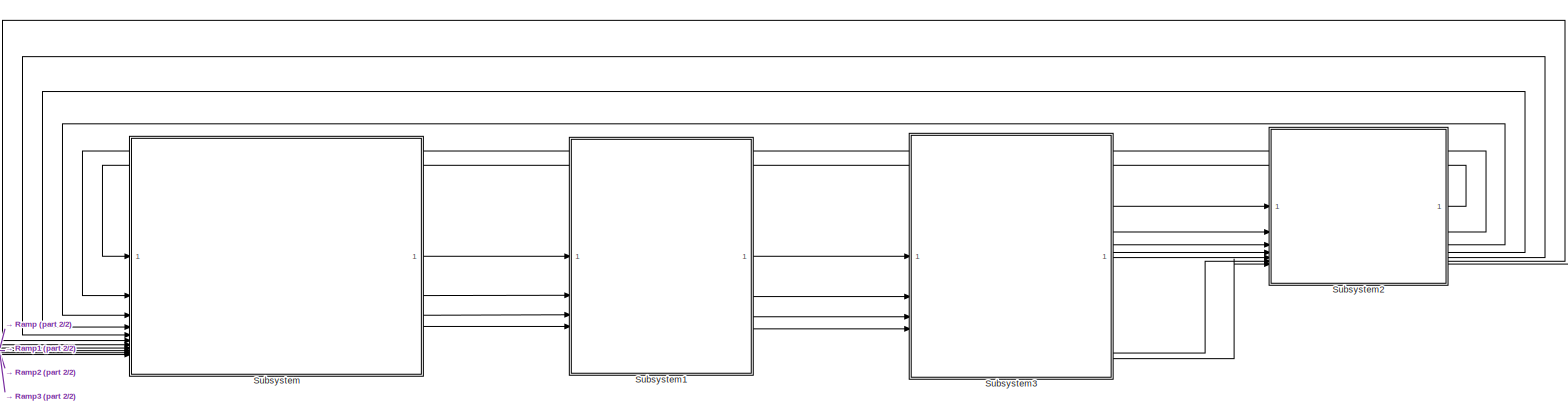
[diagram: root canvas - part 1/2, most of the canvas]
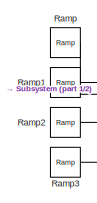
[diagram: root canvas - part 2/2, bottom left region]
MODEL slx_1e7cda9d2a9b
KIND model
CONFIG AbsTol = auto
CONFIG EnableMultiTasking = off
CONFIG FixedStep = auto
CONFIG MaxStep = auto
CONFIG MinStep = auto
CONFIG RelTol = 1e-3
CONFIG SampleTimeConstraint = Unconstrained
CONFIG SolverName = VariableStepAuto
CONFIG StartTime = 0.0
CONFIG StopTime = 10.0
BLOCK [Reference] Ramp  REF=simulink/Sources/Ramp
  SourceBlock = simulink/Sources/Ramp
  SourceType = Ramp
BLOCK [Reference] Ramp1  REF=simulink/Sources/Ramp
  SourceBlock = simulink/Sources/Ramp
  SourceType = Ramp
BLOCK [Reference] Ramp2  REF=simulink/Sources/Ramp
  SourceBlock = simulink/Sources/Ramp
  SourceType = Ramp
BLOCK [Reference] Ramp3  REF=simulink/Sources/Ramp
  SourceBlock = simulink/Sources/Ramp
  SourceType = Ramp
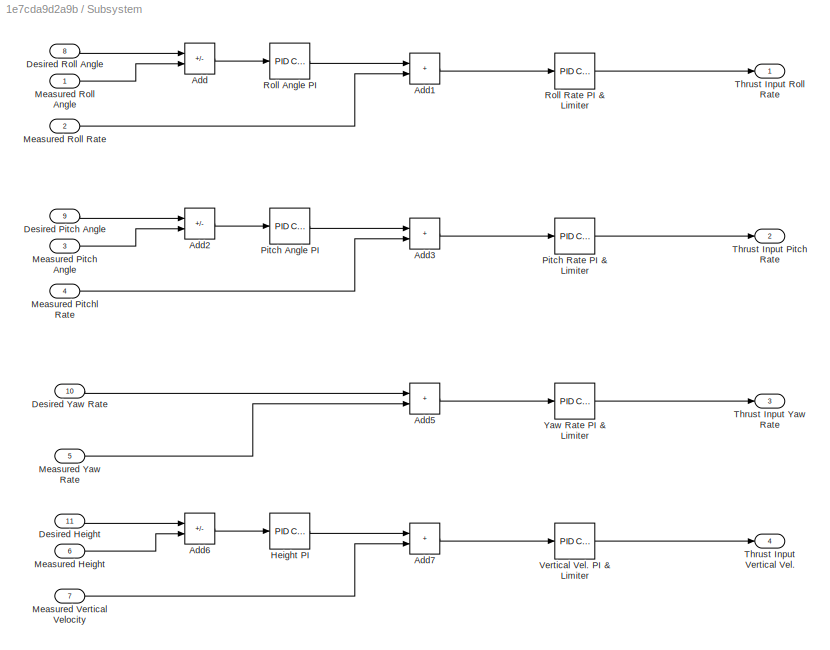
BLOCK [SubSystem] Subsystem
BLOCK [Sum] Subsystem/Add
  IconShape = rectangular
  Inputs = +-
BLOCK [Sum] Subsystem/Add1
  IconShape = rectangular
BLOCK [Sum] Subsystem/Add2
  IconShape = rectangular
  Inputs = +-
BLOCK [Sum] Subsystem/Add3
  IconShape = rectangular
BLOCK [Sum] Subsystem/Add5
  IconShape = rectangular
BLOCK [Sum] Subsystem/Add6
  IconShape = rectangular
  Inputs = +-
BLOCK [Sum] Subsystem/Add7
  IconShape = rectangular
BLOCK [Inport] Subsystem/Desired Height
  Port = 11
BLOCK [Inport] Subsystem/Desired Pitch Angle
  Port = 9
BLOCK [Inport] Subsystem/Desired Roll Angle
  Port = 8
BLOCK [Inport] Subsystem/Desired Yaw Rate
  Port = 10
BLOCK [Reference] Subsystem/Height PI  REF=slpidlib/PID Controller
  LibrarySourceBlock = simulink/Continuous/PID Controller
  SourceBlock = slpidlib/PID Controller
  SourceType = PID 1dof
BLOCK [Inport] Subsystem/Measured Height
  Port = 6
BLOCK [Inport] Subsystem/Measured Pitch Angle
  Port = 3
BLOCK [Inport] Subsystem/Measured Pitchl Rate
  Port = 4
BLOCK [Inport] Subsystem/Measured Roll Angle
BLOCK [Inport] Subsystem/Measured Roll Rate
  Port = 2
BLOCK [Inport] Subsystem/Measured Vertical Velocity
  Port = 7
BLOCK [Inport] Subsystem/Measured Yaw Rate
  Port = 5
BLOCK [Reference] Subsystem/Pitch Angle PI  REF=slpidlib/PID Controller
  LibrarySourceBlock = simulink/Continuous/PID Controller
  SourceBlock = slpidlib/PID Controller
  SourceType = PID 1dof
BLOCK [Reference] Subsystem/Pitch Rate PI & Limiter  REF=slpidlib/PID Controller
  LibrarySourceBlock = simulink/Continuous/PID Controller
  SourceBlock = slpidlib/PID Controller
  SourceType = PID 1dof
BLOCK [Reference] Subsystem/Roll Angle PI  REF=slpidlib/PID Controller
  LibrarySourceBlock = simulink/Continuous/PID Controller
  SourceBlock = slpidlib/PID Controller
  SourceType = PID 1dof
BLOCK [Reference] Subsystem/Roll Rate PI & Limiter  REF=slpidlib/PID Controller
  LibrarySourceBlock = simulink/Continuous/PID Controller
  SourceBlock = slpidlib/PID Controller
  SourceType = PID 1dof
BLOCK [Outport] Subsystem/Thrust Input Pitch Rate
  Port = 2
BLOCK [Outport] Subsystem/Thrust Input Roll Rate
BLOCK [Outport] Subsystem/Thrust Input Vertical Vel.
  Port = 4
BLOCK [Outport] Subsystem/Thrust Input Yaw Rate
  Port = 3
BLOCK [Reference] Subsystem/Vertical Vel. PI & Limiter  REF=slpidlib/PID Controller
  LibrarySourceBlock = simulink/Continuous/PID Controller
  SourceBlock = slpidlib/PID Controller
  SourceType = PID 1dof
BLOCK [Reference] Subsystem/Yaw Rate PI & Limiter  REF=slpidlib/PID Controller
  LibrarySourceBlock = simulink/Continuous/PID Controller
  SourceBlock = slpidlib/PID Controller
  SourceType = PID 1dof
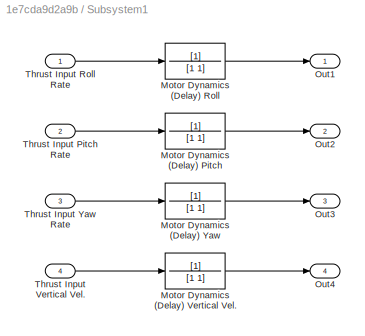
BLOCK [SubSystem] Subsystem1
BLOCK [TransferFcn] Subsystem1/Motor Dynamics (Delay) Pitch
  Denominator = [1 1]
BLOCK [TransferFcn] Subsystem1/Motor Dynamics (Delay) Roll
  Denominator = [1 1]
BLOCK [TransferFcn] Subsystem1/Motor Dynamics (Delay) Vertical Vel.
  Denominator = [1 1]
BLOCK [TransferFcn] Subsystem1/Motor Dynamics (Delay) Yaw
  Denominator = [1 1]
BLOCK [Outport] Subsystem1/Out1
BLOCK [Outport] Subsystem1/Out2
  Port = 2
BLOCK [Outport] Subsystem1/Out3
  Port = 3
BLOCK [Outport] Subsystem1/Out4
  Port = 4
BLOCK [Inport] Subsystem1/Thrust Input Pitch Rate
  Port = 2
BLOCK [Inport] Subsystem1/Thrust Input Roll Rate
BLOCK [Inport] Subsystem1/Thrust Input Vertical Vel.
  Port = 4
BLOCK [Inport] Subsystem1/Thrust Input Yaw Rate
  Port = 3
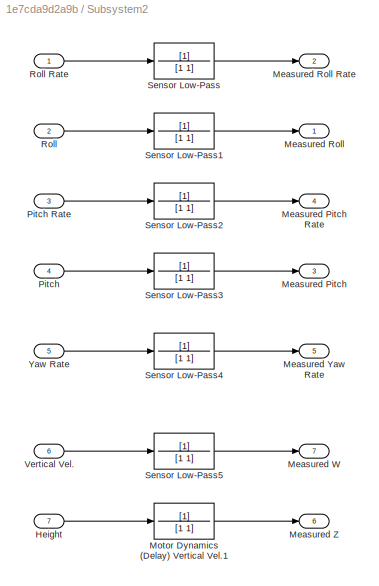
BLOCK [SubSystem] Subsystem2
BLOCK [Inport] Subsystem2/Height
  Port = 7
BLOCK [Outport] Subsystem2/Measured Pitch
  Port = 3
BLOCK [Outport] Subsystem2/Measured Pitch Rate
  Port = 4
BLOCK [Outport] Subsystem2/Measured Roll
BLOCK [Outport] Subsystem2/Measured Roll Rate
  Port = 2
BLOCK [Outport] Subsystem2/Measured W
  Port = 7
BLOCK [Outport] Subsystem2/Measured Yaw Rate
  Port = 5
BLOCK [Outport] Subsystem2/Measured Z
  Port = 6
BLOCK [TransferFcn] Subsystem2/Motor Dynamics (Delay) Vertical Vel.1
  Denominator = [1 1]
BLOCK [Inport] Subsystem2/Pitch
  Port = 4
BLOCK [Inport] Subsystem2/Pitch Rate
  Port = 3
BLOCK [Inport] Subsystem2/Roll
  Port = 2
BLOCK [Inport] Subsystem2/Roll Rate
BLOCK [TransferFcn] Subsystem2/Sensor Low-Pass
  Denominator = [1 1]
BLOCK [TransferFcn] Subsystem2/Sensor Low-Pass1
  Denominator = [1 1]
BLOCK [TransferFcn] Subsystem2/Sensor Low-Pass2
  Denominator = [1 1]
BLOCK [TransferFcn] Subsystem2/Sensor Low-Pass3
  Denominator = [1 1]
BLOCK [TransferFcn] Subsystem2/Sensor Low-Pass4
  Denominator = [1 1]
BLOCK [TransferFcn] Subsystem2/Sensor Low-Pass5
  Denominator = [1 1]
BLOCK [Inport] Subsystem2/Vertical Vel.
  Port = 6
BLOCK [Inport] Subsystem2/Yaw Rate
  Port = 5
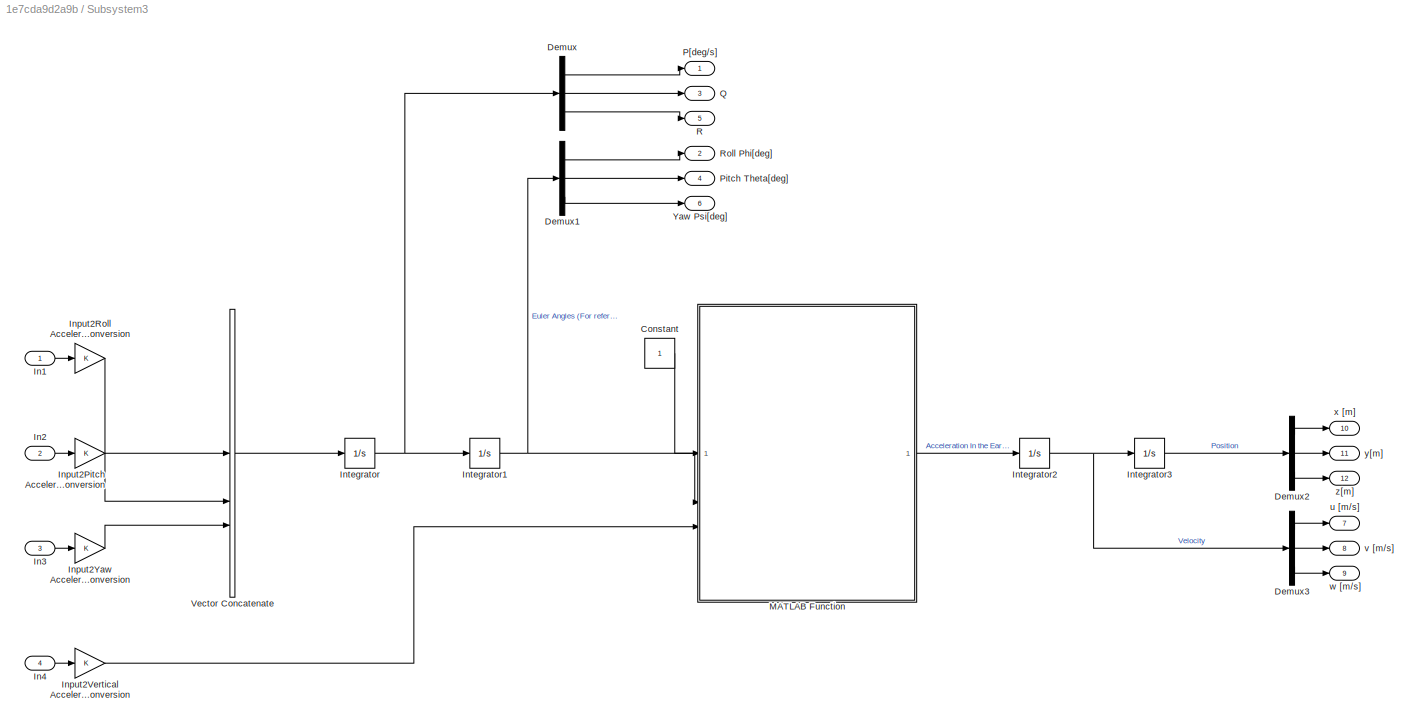
BLOCK [SubSystem] Subsystem3
BLOCK [Constant] Subsystem3/Constant
BLOCK [Demux] Subsystem3/Demux
  Outputs = 3
BLOCK [Demux] Subsystem3/Demux1
  Outputs = 3
BLOCK [Demux] Subsystem3/Demux2
  Outputs = 3
BLOCK [Demux] Subsystem3/Demux3
  Outputs = 3
BLOCK [Inport] Subsystem3/In1
BLOCK [Inport] Subsystem3/In2
  Port = 2
BLOCK [Inport] Subsystem3/In3
  Port = 3
BLOCK [Inport] Subsystem3/In4
  Port = 4
BLOCK [Gain] Subsystem3/Input2Pitch Acceleration Conversion
BLOCK [Gain] Subsystem3/Input2Roll Acceleration Conversion
BLOCK [Gain] Subsystem3/Input2Vertical Acceleration Conversion
BLOCK [Gain] Subsystem3/Input2Yaw Acceleration Conversion
BLOCK [Integrator] Subsystem3/Integrator
BLOCK [Integrator] Subsystem3/Integrator1
BLOCK [Integrator] Subsystem3/Integrator2
BLOCK [Integrator] Subsystem3/Integrator3
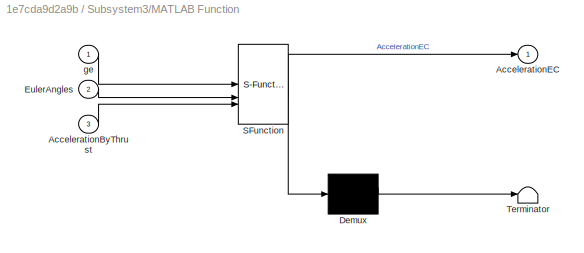
BLOCK [SubSystem] Subsystem3/MATLAB Function
  ErrorFcn = Stateflow.Translate.translate
  PermitHierarchicalResolution = ExplicitOnly
  SFBlockType = MATLAB Function
  TreatAsAtomicUnit = on
BLOCK [Demux] Subsystem3/MATLAB Function/ Demux 
  Outputs = 1
BLOCK [S-Function] Subsystem3/MATLAB Function/ SFunction 
  EnableBusSupport = off
  FunctionName = sf_sfun
  PortCounts = [3 2]
  SFcnIsStateOwnerBlock = off
  SFunctionDeploymentMode = off
  Tag = Stateflow S-Function 2
BLOCK [Terminator] Subsystem3/MATLAB Function/ Terminator 
BLOCK [Inport] Subsystem3/MATLAB Function/AccelerationByThrust
  Port = 3
BLOCK [Outport] Subsystem3/MATLAB Function/AccelerationEC
BLOCK [Inport] Subsystem3/MATLAB Function/EulerAngles
  Port = 2
BLOCK [Inport] Subsystem3/MATLAB Function/ge
BLOCK [Outport] Subsystem3/P[deg//s]
  NameLocation = right
BLOCK [Outport] Subsystem3/Pitch Theta[deg]
  NameLocation = right
  Port = 4
BLOCK [Outport] Subsystem3/Q
  NameLocation = right
  Port = 3
BLOCK [Outport] Subsystem3/R
  NameLocation = right
  Port = 5
BLOCK [Outport] Subsystem3/Roll Phi[deg]
  NameLocation = right
  Port = 2
BLOCK [Concatenate] Subsystem3/Vector Concatenate
  NumInputs = 3
BLOCK [Outport] Subsystem3/Yaw Psi[deg]
  NameLocation = right
  Port = 6
BLOCK [Outport] Subsystem3/u [m//s]
  NameLocation = right
  Port = 7
BLOCK [Outport] Subsystem3/v [m//s]
  NameLocation = right
  Port = 8
BLOCK [Outport] Subsystem3/w [m//s]
  NameLocation = right
  Port = 9
BLOCK [Outport] Subsystem3/x [m]
  NameLocation = right
  Port = 10
BLOCK [Outport] Subsystem3/y[m]
  NameLocation = right
  Port = 11
BLOCK [Outport] Subsystem3/z[m]
  NameLocation = right
  Port = 12
LINE Ramp1:1 -> Subsystem:9
LINE Ramp2:1 -> Subsystem:10
LINE Ramp3:1 -> Subsystem:11
LINE Ramp:1 -> Subsystem:8
LINE Subsystem/Add1:1 -> Subsystem/Roll Rate PI & Limiter:1
LINE Subsystem/Add2:1 -> Subsystem/Pitch Angle PI:1
LINE Subsystem/Add3:1 -> Subsystem/Pitch Rate PI & Limiter:1
LINE Subsystem/Add5:1 -> Subsystem/Yaw Rate PI & Limiter:1
LINE Subsystem/Add6:1 -> Subsystem/Height PI:1
LINE Subsystem/Add7:1 -> Subsystem/Vertical Vel. PI & Limiter:1
LINE Subsystem/Add:1 -> Subsystem/Roll Angle PI:1
LINE Subsystem/Desired Height:1 -> Subsystem/Add6:1
LINE Subsystem/Desired Pitch Angle:1 -> Subsystem/Add2:1
LINE Subsystem/Desired Roll Angle:1 -> Subsystem/Add:1
LINE Subsystem/Desired Yaw Rate:1 -> Subsystem/Add5:1
LINE Subsystem/Height PI:1 -> Subsystem/Add7:1
LINE Subsystem/Measured Height:1 -> Subsystem/Add6:2
LINE Subsystem/Measured Pitch Angle:1 -> Subsystem/Add2:2
LINE Subsystem/Measured Pitchl Rate:1 -> Subsystem/Add3:2
LINE Subsystem/Measured Roll Angle:1 -> Subsystem/Add:2
LINE Subsystem/Measured Roll Rate:1 -> Subsystem/Add1:2
LINE Subsystem/Measured Vertical Velocity:1 -> Subsystem/Add7:2
LINE Subsystem/Measured Yaw Rate:1 -> Subsystem/Add5:2
LINE Subsystem/Pitch Angle PI:1 -> Subsystem/Add3:1
LINE Subsystem/Pitch Rate PI & Limiter:1 -> Subsystem/Thrust Input Pitch Rate:1
LINE Subsystem/Roll Angle PI:1 -> Subsystem/Add1:1
LINE Subsystem/Roll Rate PI & Limiter:1 -> Subsystem/Thrust Input Roll Rate:1
LINE Subsystem/Vertical Vel. PI & Limiter:1 -> Subsystem/Thrust Input Vertical Vel.:1
LINE Subsystem/Yaw Rate PI & Limiter:1 -> Subsystem/Thrust Input Yaw Rate:1
LINE Subsystem1/Motor Dynamics (Delay) Pitch:1 -> Subsystem1/Out2:1
LINE Subsystem1/Motor Dynamics (Delay) Roll:1 -> Subsystem1/Out1:1
LINE Subsystem1/Motor Dynamics (Delay) Vertical Vel.:1 -> Subsystem1/Out4:1
LINE Subsystem1/Motor Dynamics (Delay) Yaw:1 -> Subsystem1/Out3:1
LINE Subsystem1/Thrust Input Pitch Rate:1 -> Subsystem1/Motor Dynamics (Delay) Pitch:1
LINE Subsystem1/Thrust Input Roll Rate:1 -> Subsystem1/Motor Dynamics (Delay) Roll:1
LINE Subsystem1/Thrust Input Vertical Vel.:1 -> Subsystem1/Motor Dynamics (Delay) Vertical Vel.:1
LINE Subsystem1/Thrust Input Yaw Rate:1 -> Subsystem1/Motor Dynamics (Delay) Yaw:1
LINE Subsystem1:1 -> Subsystem3:1
LINE Subsystem1:2 -> Subsystem3:2
LINE Subsystem1:3 -> Subsystem3:3
LINE Subsystem1:4 -> Subsystem3:4
LINE Subsystem2/Height:1 -> Subsystem2/Motor Dynamics (Delay) Vertical Vel.1:1
LINE Subsystem2/Motor Dynamics (Delay) Vertical Vel.1:1 -> Subsystem2/Measured Z:1
LINE Subsystem2/Pitch Rate:1 -> Subsystem2/Sensor Low-Pass2:1
LINE Subsystem2/Pitch:1 -> Subsystem2/Sensor Low-Pass3:1
LINE Subsystem2/Roll Rate:1 -> Subsystem2/Sensor Low-Pass:1
LINE Subsystem2/Roll:1 -> Subsystem2/Sensor Low-Pass1:1
LINE Subsystem2/Sensor Low-Pass1:1 -> Subsystem2/Measured Roll:1
LINE Subsystem2/Sensor Low-Pass2:1 -> Subsystem2/Measured Pitch Rate:1
LINE Subsystem2/Sensor Low-Pass3:1 -> Subsystem2/Measured Pitch:1
LINE Subsystem2/Sensor Low-Pass4:1 -> Subsystem2/Measured Yaw Rate:1
LINE Subsystem2/Sensor Low-Pass5:1 -> Subsystem2/Measured W:1
LINE Subsystem2/Sensor Low-Pass:1 -> Subsystem2/Measured Roll Rate:1
LINE Subsystem2/Vertical Vel.:1 -> Subsystem2/Sensor Low-Pass5:1
LINE Subsystem2/Yaw Rate:1 -> Subsystem2/Sensor Low-Pass4:1
LINE Subsystem2:1 -> Subsystem:1
LINE Subsystem2:2 -> Subsystem:2
LINE Subsystem2:3 -> Subsystem:3
LINE Subsystem2:4 -> Subsystem:4
LINE Subsystem2:5 -> Subsystem:5
LINE Subsystem2:6 -> Subsystem:6
LINE Subsystem2:7 -> Subsystem:7
LINE Subsystem3/Constant:1 -> Subsystem3/MATLAB Function:1
LINE Subsystem3/Demux1:1 -> Subsystem3/Roll Phi[deg]:1
LINE Subsystem3/Demux1:2 -> Subsystem3/Pitch Theta[deg]:1
LINE Subsystem3/Demux1:3 -> Subsystem3/Yaw Psi[deg]:1
LINE Subsystem3/Demux2:1 -> Subsystem3/x [m]:1
LINE Subsystem3/Demux2:2 -> Subsystem3/y[m]:1
LINE Subsystem3/Demux2:3 -> Subsystem3/z[m]:1
LINE Subsystem3/Demux3:1 -> Subsystem3/u [m//s]:1
LINE Subsystem3/Demux3:2 -> Subsystem3/v [m//s]:1
LINE Subsystem3/Demux3:3 -> Subsystem3/w [m//s]:1
LINE Subsystem3/Demux:1 -> Subsystem3/P[deg//s]:1
LINE Subsystem3/Demux:2 -> Subsystem3/Q:1
LINE Subsystem3/Demux:3 -> Subsystem3/R:1
LINE Subsystem3/In1:1 -> Subsystem3/Input2Roll Acceleration Conversion:1
LINE Subsystem3/In2:1 -> Subsystem3/Input2Pitch Acceleration Conversion:1
LINE Subsystem3/In3:1 -> Subsystem3/Input2Yaw Acceleration Conversion:1
LINE Subsystem3/In4:1 -> Subsystem3/Input2Vertical Acceleration Conversion:1
LINE Subsystem3/Input2Pitch Acceleration Conversion:1 -> Subsystem3/Vector Concatenate:2
LINE Subsystem3/Input2Roll Acceleration Conversion:1 -> Subsystem3/Vector Concatenate:1
LINE Subsystem3/Input2Vertical Acceleration Conversion:1 -> Subsystem3/MATLAB Function:3
LINE Subsystem3/Input2Yaw Acceleration Conversion:1 -> Subsystem3/Vector Concatenate:3
NET Subsystem3/Integrator1:1 -> Subsystem3/Demux1:1, Subsystem3/MATLAB Function:2
NET Subsystem3/Integrator2:1 -> Subsystem3/Demux3:1, Subsystem3/Integrator3:1
LINE Subsystem3/Integrator3:1 -> Subsystem3/Demux2:1
NET Subsystem3/Integrator:1 -> Subsystem3/Demux:1, Subsystem3/Integrator1:1
LINE Subsystem3/MATLAB Function:1 -> Subsystem3/Integrator2:1
LINE Subsystem3/Vector Concatenate:1 -> Subsystem3/Integrator:1
LINE Subsystem3:1 -> Subsystem2:1
LINE Subsystem3:12 -> Subsystem2:7
LINE Subsystem3:2 -> Subsystem2:2
LINE Subsystem3:3 -> Subsystem2:3
LINE Subsystem3:4 -> Subsystem2:4
LINE Subsystem3:5 -> Subsystem2:5
LINE Subsystem3:9 -> Subsystem2:6
LINE Subsystem:1 -> Subsystem1:1
LINE Subsystem:2 -> Subsystem1:2
LINE Subsystem:3 -> Subsystem1:3
LINE Subsystem:4 -> Subsystem1:4
note: NET lines group one-source signal fan-out (src -> all destinations, sorted); 1:1 wires keep LINE
CHART Subsystem3/MATLAB Function states=1 transitions=1
  STATE_LABEL 'eML_blk_kernel()'
  STATE_LABEL 'SCRIPT:\nfunction AccelerationEC = fcn(ge,EulerAngles,AccelerationByThrust)\n    Tf=[0,0,0]; %[m/s2]\n\n    EulerAngles=EulerAngles*pi/180.0;\n    Phi     =EulerAngles(1);\n    Theta  =EulerAngles(2);\n    Psi     =EulerAngles(3);\n\n    %Acceleration of Drone by Thrust Input on the Drone Coordinate\n    AccelerationDC=...\n        [...\n            -ge*sin(Theta)           + Tf(1);...\n             ge*cos(The...<+730ch>'
CHART  states=0 transitions=0
